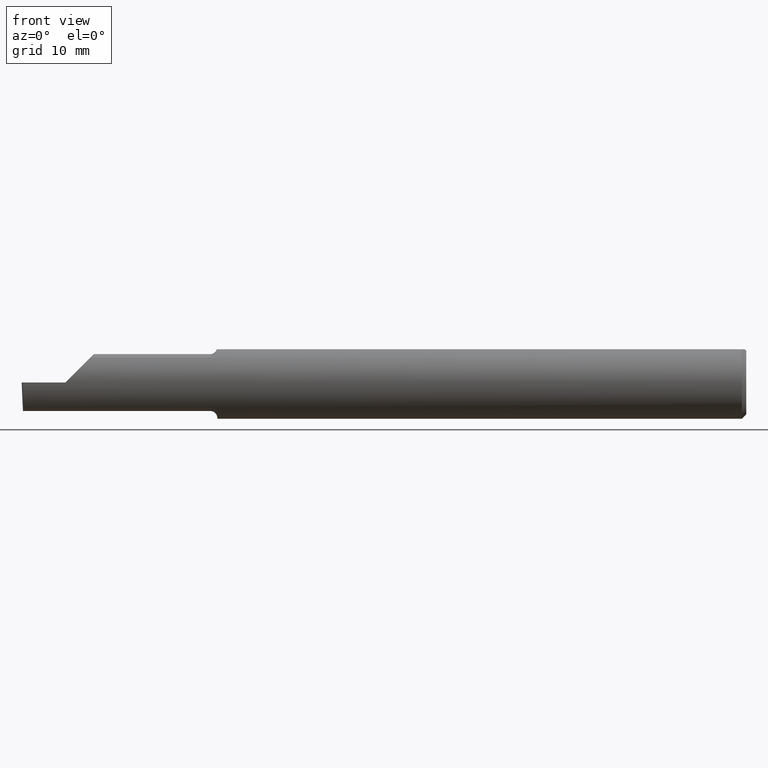
[diagram: clean part render]
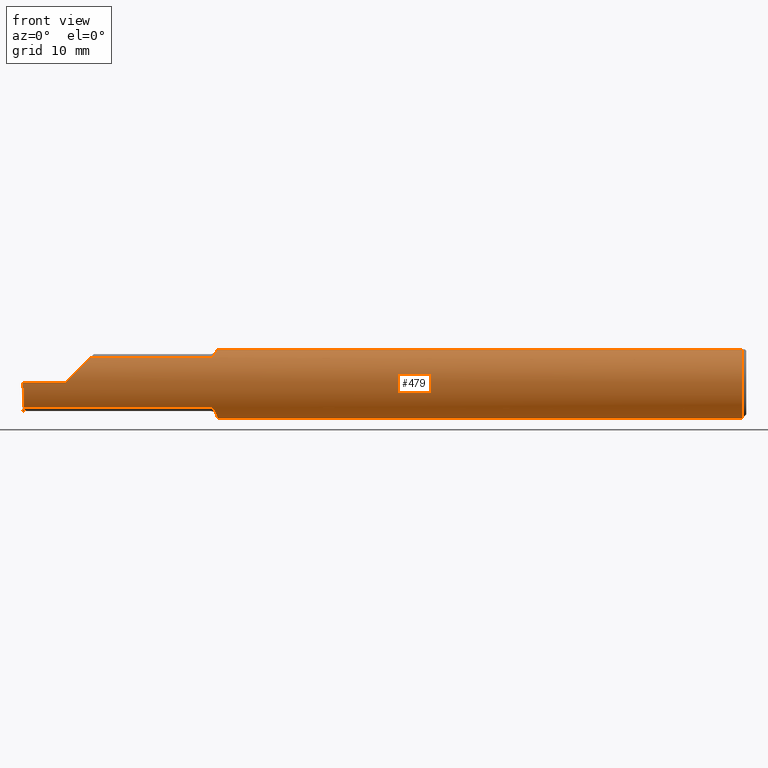
[diagram: same view with one face highlighted and labeled with its STEP entity id]
A machine part, front view. The second image highlights one B-rep face of the part: STEP entity #479.
In plain terms, the highlighted cylindrical surface (edge-blend (fillet) strip) has radius 3.1712 mm, axis along (1, -0, -0).
Its self-contained STEP definition (entity closure, byte-faithful):
#2 = EDGE_CURVE ( 'NONE', #280, #710, #288, .T. ) ;
#9 = EDGE_CURVE ( 'NONE', #439, #497, #161, .T. ) ;
#17 = CARTESIAN_POINT ( 'NONE',  ( -1.826326891871145941, -0.04895916665872474677, 0.1148500000000000076 ) ) ;
#36 = CARTESIAN_POINT ( 'NONE',  ( -1.847259638933031578, -0.09015216647662445404, -0.08637192471845808739 ) ) ;
#38 = ORIENTED_EDGE ( 'NONE', *, *, #9, .T. ) ;
#42 = CARTESIAN_POINT ( 'NONE',  ( -1.826929090759344509, -0.05370719728932718540, -0.1128289886859672325 ) ) ;
#46 = CARTESIAN_POINT ( 'NONE',  ( -1.833278800716858115, -0.07573621487658313556, -0.09938639293507189887 ) ) ;
#67 = DIRECTION ( 'NONE',  ( 1.000000000000000000, -0.000000000000000000, -0.000000000000000000 ) ) ;
#75 = AXIS2_PLACEMENT_3D ( 'NONE', #740, #380, #204 ) ;
#77 = CARTESIAN_POINT ( 'NONE',  ( -1.827489051389806329, -0.05793447593674446588, 0.1110239341513696160 ) ) ;
#78 = CARTESIAN_POINT ( 'NONE',  ( -0.01499999999999999944, -0.04895916665957456698, 0.1148500000000000076 ) ) ;
#81 = CARTESIAN_POINT ( 'NONE',  ( -1.839990549600693193, -0.08554147198584186040, 0.09096407607062395595 ) ) ;
#82 = EDGE_CURVE ( 'NONE', #613, #436, #433, .T. ) ;
#94 = VECTOR ( 'NONE', #158, 39.37007874015748143 ) ;
#99 = LINE ( 'NONE', #415, #540 ) ;
#106 = ORIENTED_EDGE ( 'NONE', *, *, #435, .T. ) ;
#122 = CARTESIAN_POINT ( 'NONE',  ( -2.495690077103728921, -0.1248499999950964945, 8.800986592364463999E-18 ) ) ;
#127 = CARTESIAN_POINT ( 'NONE',  ( -1.840875432832431491, -0.08647060418110406876, -0.09007670266896511402 ) ) ;
#128 = EDGE_LOOP ( 'NONE', ( #106, #531, #181, #299, #778, #170, #480, #38, #617, #150, #525, #659, #758, #249 ) ) ;
#133 = CARTESIAN_POINT ( 'NONE',  ( -0.01499999999999987454, 0.04895916665957496944, 0.1148500000000000076 ) ) ;
#136 = CARTESIAN_POINT ( 'NONE',  ( -1.849999999999999867, -0.09015216647662482874, 0.08637192471845768493 ) ) ;
#139 = VERTEX_POINT ( 'NONE', #122 ) ;
#140 = CARTESIAN_POINT ( 'NONE',  ( -1.826326891871145941, -0.04895916665872474677, 0.1148500000000000076 ) ) ;
#144 = CIRCLE ( 'NONE', #658, 0.1248500000000000026 ) ;
#148 = CARTESIAN_POINT ( 'NONE',  ( -2.287163018370355072, -0.1127002472623169216, 0.06283698162964553025 ) ) ;
#149 = DIRECTION ( 'NONE',  ( 0.000000000000000000, 0.000000000000000000, -1.000000000000000000 ) ) ;
#150 = ORIENTED_EDGE ( 'NONE', *, *, #788, .T. ) ;
#154 = CARTESIAN_POINT ( 'NONE',  ( -1.825756598855984292, -0.04385000000000004172, -0.1168961077196328108 ) ) ;
#155 = CARTESIAN_POINT ( 'NONE',  ( -2.494256244271086054, -0.1126860773865890342, -0.06285177167860771241 ) ) ;
#158 = DIRECTION ( 'NONE',  ( -1.000000000000000000, 0.000000000000000000, 0.000000000000000000 ) ) ;
#159 = FACE_OUTER_BOUND ( 'NONE', #128, .T. ) ;
#161 = LINE ( 'NONE', #343, #597 ) ;
#170 = ORIENTED_EDGE ( 'NONE', *, *, #271, .T. ) ;
#172 = EDGE_CURVE ( 'NONE', #629, #588, #567, .T. ) ;
#176 = CARTESIAN_POINT ( 'NONE',  ( -1.828850144156348723, -0.06295012366509138146, -0.1079450122012245855 ) ) ;
#181 = ORIENTED_EDGE ( 'NONE', *, *, #584, .T. ) ;
#191 = DIRECTION ( 'NONE',  ( -0.02617296143184117893, -0.0004568507411563385774, 0.9996573249755575929 ) ) ;
#193 = CARTESIAN_POINT ( 'NONE',  ( -1.825000000000000400, -0.02715330672748003313, -0.1218614805168695830 ) ) ;
#203 = CARTESIAN_POINT ( 'NONE',  ( -1.845195245915135285, -0.08928014009840809506, 0.08728826463238045785 ) ) ;
#204 = DIRECTION ( 'NONE',  ( 0.000000000000000000, 0.000000000000000000, 1.000000000000000000 ) ) ;
#209 = CARTESIAN_POINT ( 'NONE',  ( -1.824999999999999956, -0.03284222813693381954, -0.1205938689030582739 ) ) ;
#214 = CARTESIAN_POINT ( 'NONE',  ( -2.494033449660867152, -0.09015216647662482874, -0.08637192471845768493 ) ) ;
#219 = DIRECTION ( 'NONE',  ( 1.000000000000000000, -0.000000000000000000, -0.000000000000000000 ) ) ;
#235 = CARTESIAN_POINT ( 'NONE',  ( -1.835226514481665516, -0.07966992494485836129, -0.09623747760188229583 ) ) ;
#236 = B_SPLINE_CURVE_WITH_KNOTS ( 'NONE', 3,
 ( #140, #77, #680, #382, #625, #81, #570, #203, #378, #136 ),
 .UNSPECIFIED., .F., .F.,
 ( 4, 2, 2, 2, 4 ),
 ( 5.065792319871578098E-07, 0.0007388407001989738283, 0.001108007760682467799, 0.001292591290924215109, 0.001477174821165962420 ),
 .UNSPECIFIED. ) ;
#239 = VECTOR ( 'NONE', #191, 39.37007874015748854 ) ;
#249 = ORIENTED_EDGE ( 'NONE', *, *, #82, .F. ) ;
#253 = VECTOR ( 'NONE', #67, 39.37007874015748143 ) ;
#263 = VECTOR ( 'NONE', #461, 39.37007874015748143 ) ;
#265 = B_SPLINE_CURVE_WITH_KNOTS ( 'NONE', 3,
 ( #154, #752, #209, #687 ),
 .UNSPECIFIED., .F., .F.,
 ( 4, 4 ),
 ( 0.001640801893433563134, 0.002088276671954477758 ),
 .UNSPECIFIED. ) ;
#266 = LINE ( 'NONE', #616, #239 ) ;
#271 = EDGE_CURVE ( 'NONE', #688, #679, #761, .T. ) ;
#280 = VERTEX_POINT ( 'NONE', #193 ) ;
#288 = CIRCLE ( 'NONE', #662, 0.1248500000000000026 ) ;
#290 = CARTESIAN_POINT ( 'NONE',  ( 0.000000000000000000, 0.000000000000000000, 0.000000000000000000 ) ) ;
#294 = EDGE_CURVE ( 'NONE', #436, #139, #266, .T. ) ;
#296 =( BOUNDED_CURVE ( )  B_SPLINE_CURVE ( 3, ( #635, #569, #148, #472 ),
 .UNSPECIFIED., .F., .F. ) 
 B_SPLINE_CURVE_WITH_KNOTS ( ( 4, 4 ),
 ( 4.712388980384690562, 5.476375539154175520 ),
 .UNSPECIFIED. ) 
 CURVE ( )  GEOMETRIC_REPRESENTATION_ITEM ( )  RATIONAL_B_SPLINE_CURVE ( ( 1.000000000000000000, 0.9519489620492029847, 0.9519489620492029847, 1.000000000000000000 ) ) 
 REPRESENTATION_ITEM ( '' )  );
#299 = ORIENTED_EDGE ( 'NONE', *, *, #2, .T. ) ;
#311 = CARTESIAN_POINT ( 'NONE',  ( -2.350000000000000089, -0.1248500000000000026, 1.836970198721028825E-17 ) ) ;
#319 = CARTESIAN_POINT ( 'NONE',  ( -1.825000000000000400, 0.04895916665957496944, 0.1148500000000000076 ) ) ;
#335 = DIRECTION ( 'NONE',  ( 1.000000000000000000, -0.000000000000000000, -0.000000000000000000 ) ) ;
#343 = CARTESIAN_POINT ( 'NONE',  ( 0.000000000000000000, -0.04895916665957456698, 0.1148500000000000076 ) ) ;
#344 = VERTEX_POINT ( 'NONE', #311 ) ;
#361 = AXIS2_PLACEMENT_3D ( 'NONE', #290, #335, #575 ) ;
#370 = CARTESIAN_POINT ( 'NONE',  ( -1.825756598855984292, -0.04385000000000004172, -0.1168961077196328108 ) ) ;
#378 = CARTESIAN_POINT ( 'NONE',  ( -1.847502509400819060, -0.09015216647698111319, 0.08637192471808594063 ) ) ;
#380 = DIRECTION ( 'NONE',  ( -1.000000000000000000, 0.000000000000000000, 0.000000000000000000 ) ) ;
#382 = CARTESIAN_POINT ( 'NONE',  ( -1.834117122045868520, -0.07738857672815888100, 0.09808127502738701875 ) ) ;
#395 = CARTESIAN_POINT ( 'NONE',  ( -1.849999999999999867, -0.09015216647662478711, -0.08637192471845771269 ) ) ;
#400 = DIRECTION ( 'NONE',  ( 0.000000000000000000, 0.000000000000000000, 1.000000000000000000 ) ) ;
#403 = CARTESIAN_POINT ( 'NONE',  ( -2.494835769263151537, -0.1248351010429638169, -0.03262966116142150541 ) ) ;
#415 = CARTESIAN_POINT ( 'NONE',  ( 0.000000000000000000, 0.04895916665957456698, 0.1148500000000000076 ) ) ;
#433 =( BOUNDED_CURVE ( )  B_SPLINE_CURVE ( 3, ( #214, #155, #403, #636 ),
 .UNSPECIFIED., .F., .F. ) 
 B_SPLINE_CURVE_WITH_KNOTS ( ( 4, 4 ),
 ( 0.2190942387645742062, 0.9826237902197102470 ),
 .UNSPECIFIED. ) 
 CURVE ( )  GEOMETRIC_REPRESENTATION_ITEM ( )  RATIONAL_B_SPLINE_CURVE ( ( 1.000000000000000000, 0.9520057322288819623, 0.9520057322288819623, 1.000000000000000000 ) ) 
 REPRESENTATION_ITEM ( '' )  );
#435 = EDGE_CURVE ( 'NONE', #613, #629, #697, .T. ) ;
#436 = VERTEX_POINT ( 'NONE', #641 ) ;
#439 = VERTEX_POINT ( 'NONE', #78 ) ;
#443 = CARTESIAN_POINT ( 'NONE',  ( -3.749399456654637998E-32, -0.1248500000000000026, 3.061616997868380676E-16 ) ) ;
#449 = EDGE_CURVE ( 'NONE', #710, #688, #99, .T. ) ;
#454 = CARTESIAN_POINT ( 'NONE',  ( -2.143499999999999961, -0.09015216647662482874, -0.08637192471845768493 ) ) ;
#461 = DIRECTION ( 'NONE',  ( 1.000000000000000000, -0.000000000000000000, -0.000000000000000000 ) ) ;
#467 = CARTESIAN_POINT ( 'NONE',  ( -1.849999999999999867, -0.09015216647662482874, 0.08637192471845768493 ) ) ;
#472 = CARTESIAN_POINT ( 'NONE',  ( -2.263628075281542529, -0.09015216647662421812, 0.08637192471845822617 ) ) ;
#479 = ADVANCED_FACE ( 'NONE', ( #159 ), #516, .T. ) ;
#480 = ORIENTED_EDGE ( 'NONE', *, *, #604, .T. ) ;
#497 = VERTEX_POINT ( 'NONE', #17 ) ;
#516 = CYLINDRICAL_SURFACE ( 'NONE', #361, 0.1248500000000000026 ) ;
#522 = DIRECTION ( 'NONE',  ( 1.000000000000000000, -0.000000000000000000, -0.000000000000000000 ) ) ;
#525 = ORIENTED_EDGE ( 'NONE', *, *, #562, .F. ) ;
#529 = VERTEX_POINT ( 'NONE', #467 ) ;
#531 = ORIENTED_EDGE ( 'NONE', *, *, #172, .T. ) ;
#540 = VECTOR ( 'NONE', #522, 39.37007874015748143 ) ;
#546 = CARTESIAN_POINT ( 'NONE',  ( -1.826227715916085126, -0.04883822427082840784, -0.1150249279297937549 ) ) ;
#562 = EDGE_CURVE ( 'NONE', #344, #671, #296, .T. ) ;
#567 = B_SPLINE_CURVE_WITH_KNOTS ( 'NONE', 3,
 ( #595, #36, #666, #127, #600, #235, #46, #712, #176, #42, #546, #370 ),
 .UNSPECIFIED., .F., .F.,
 ( 4, 2, 2, 2, 2, 4 ),
 ( 1.963988863383734834E-07, 0.0002052720857047454339, 0.0004103477725231525239, 0.0008204991461599561329, 0.001230650519796759471, 0.001640801893433563134 ),
 .UNSPECIFIED. ) ;
#569 = CARTESIAN_POINT ( 'NONE',  ( -2.317406910344188997, -0.1248500000000000304, 0.03259308965581166062 ) ) ;
#570 = CARTESIAN_POINT ( 'NONE',  ( -1.841486677516400272, -0.08696861555842264058, 0.08959154238194114162 ) ) ;
#575 = DIRECTION ( 'NONE',  ( 0.000000000000000000, 0.000000000000000000, 1.000000000000000000 ) ) ;
#582 = CARTESIAN_POINT ( 'NONE',  ( -2.494033449660867152, -0.09015216647662482874, -0.08637192471845768493 ) ) ;
#584 = EDGE_CURVE ( 'NONE', #588, #280, #265, .T. ) ;
#588 = VERTEX_POINT ( 'NONE', #703 ) ;
#595 = CARTESIAN_POINT ( 'NONE',  ( -1.849999999999999867, -0.09015216647662478711, -0.08637192471845771269 ) ) ;
#597 = VECTOR ( 'NONE', #757, 39.37007874015748143 ) ;
#600 = CARTESIAN_POINT ( 'NONE',  ( -1.839311064734462153, -0.08485061678078631431, -0.09161469295857084527 ) ) ;
#604 = EDGE_CURVE ( 'NONE', #679, #439, #144, .T. ) ;
#613 = VERTEX_POINT ( 'NONE', #582 ) ;
#616 = CARTESIAN_POINT ( 'NONE',  ( -2.493072779947982820, -0.1248043149033065263, -0.09996577117162364079 ) ) ;
#617 = ORIENTED_EDGE ( 'NONE', *, *, #696, .T. ) ;
#625 = CARTESIAN_POINT ( 'NONE',  ( -1.836053217927678949, -0.08094812012684945990, 0.09514231764822853044 ) ) ;
#629 = VERTEX_POINT ( 'NONE', #395 ) ;
#635 = CARTESIAN_POINT ( 'NONE',  ( -2.350000000000000089, -0.1248500000000000026, 1.836970198721028825E-17 ) ) ;
#636 = CARTESIAN_POINT ( 'NONE',  ( -2.495688583004118666, -0.1248499869621840785, -5.705736120965713455E-05 ) ) ;
#640 = LINE ( 'NONE', #759, #94 ) ;
#641 = CARTESIAN_POINT ( 'NONE',  ( -2.495688583004118666, -0.1248499869621840785, -5.705736120965713455E-05 ) ) ;
#648 = DIRECTION ( 'NONE',  ( -1.000000000000000000, 0.000000000000000000, 0.000000000000000000 ) ) ;
#658 = AXIS2_PLACEMENT_3D ( 'NONE', #684, #648, #400 ) ;
#659 = ORIENTED_EDGE ( 'NONE', *, *, #709, .F. ) ;
#662 = AXIS2_PLACEMENT_3D ( 'NONE', #699, #219, #149 ) ;
#666 = CARTESIAN_POINT ( 'NONE',  ( -1.844784064659362732, -0.08911389870154515225, -0.08746251087962811366 ) ) ;
#671 = VERTEX_POINT ( 'NONE', #744 ) ;
#677 = CARTESIAN_POINT ( 'NONE',  ( -0.01499999999999999944, 0.000000000000000000, -0.1248500000000000026 ) ) ;
#679 = VERTEX_POINT ( 'NONE', #677 ) ;
#680 = CARTESIAN_POINT ( 'NONE',  ( -1.829335346929611861, -0.06618116991694673878, 0.1062694618620808051 ) ) ;
#684 = CARTESIAN_POINT ( 'NONE',  ( -0.01499999999999999944, 0.000000000000000000, 0.000000000000000000 ) ) ;
#687 = CARTESIAN_POINT ( 'NONE',  ( -1.825000000000000400, -0.02715330672748003313, -0.1218614805168695830 ) ) ;
#688 = VERTEX_POINT ( 'NONE', #133 ) ;
#696 = EDGE_CURVE ( 'NONE', #497, #529, #236, .T. ) ;
#697 = LINE ( 'NONE', #454, #263 ) ;
#699 = CARTESIAN_POINT ( 'NONE',  ( -1.825000000000000400, 0.000000000000000000, 0.000000000000000000 ) ) ;
#703 = CARTESIAN_POINT ( 'NONE',  ( -1.825756598855984292, -0.04385000000000004172, -0.1168961077196328108 ) ) ;
#709 = EDGE_CURVE ( 'NONE', #139, #344, #784, .T. ) ;
#710 = VERTEX_POINT ( 'NONE', #319 ) ;
#712 = CARTESIAN_POINT ( 'NONE',  ( -1.830064983703084902, -0.06736177101644115484, -0.1052426774175050372 ) ) ;
#740 = CARTESIAN_POINT ( 'NONE',  ( -0.01499999999999999944, 0.000000000000000000, 0.000000000000000000 ) ) ;
#744 = CARTESIAN_POINT ( 'NONE',  ( -2.263628075281542529, -0.09015216647662421812, 0.08637192471845822617 ) ) ;
#752 = CARTESIAN_POINT ( 'NONE',  ( -1.825242610568498236, -0.03840785182185599278, -0.1189375631818110624 ) ) ;
#757 = DIRECTION ( 'NONE',  ( -1.000000000000000000, 0.000000000000000000, 0.000000000000000000 ) ) ;
#758 = ORIENTED_EDGE ( 'NONE', *, *, #294, .F. ) ;
#759 = CARTESIAN_POINT ( 'NONE',  ( -2.143499999999999961, -0.09015216647662482874, 0.08637192471845768493 ) ) ;
#761 = CIRCLE ( 'NONE', #75, 0.1248500000000000026 ) ;
#778 = ORIENTED_EDGE ( 'NONE', *, *, #449, .T. ) ;
#784 = LINE ( 'NONE', #443, #253 ) ;
#788 = EDGE_CURVE ( 'NONE', #529, #671, #640, .T. ) ;